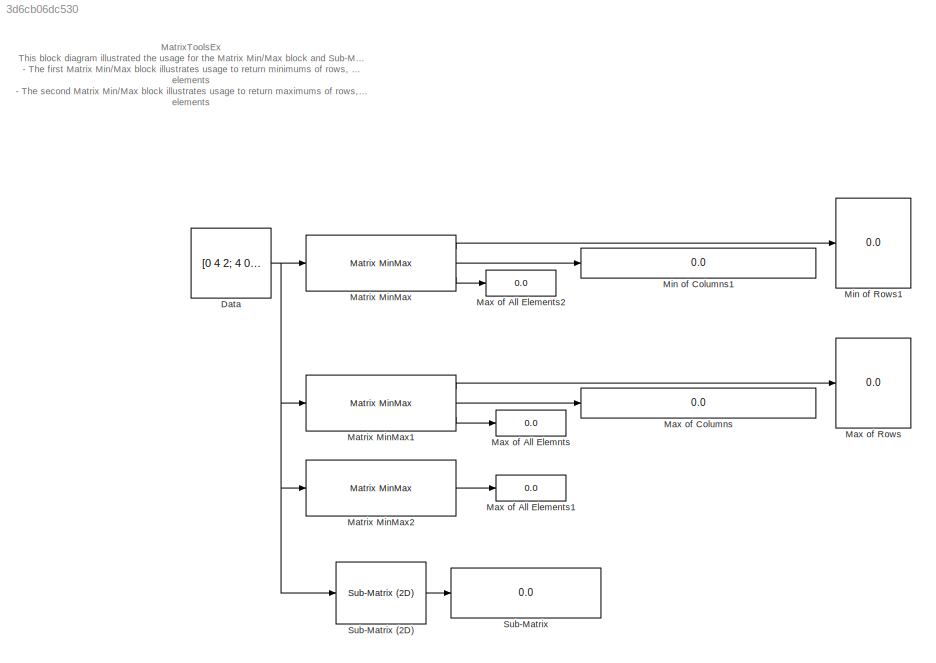
MODEL slx_3d6cb06dc530
KIND model
CONFIG AbsTol = auto
CONFIG FixedStep = auto
CONFIG MaxStep = auto
CONFIG MinStep = auto
CONFIG RelTol = 1e-3
CONFIG SampleTimeConstraint = Unconstrained
CONFIG Solver = ode45
CONFIG SolverMode = Auto
CONFIG SolverName = ode45
CONFIG StartTime = 0.0
CONFIG StopTime = 10.0
BLOCK [Constant] Data
  Value = [0 4 2; 4 0 -4; 1 -5 7; 8 -2 1]
BLOCK [Reference] Matrix MinMax  REF=lib_GenTools_MinMax/Matrix MinMax
  BN_M = gcb
  Ports = [1, 3]
  SourceBlock = lib_GenTools_MinMax/Matrix MinMax
  SourceType = TSAT: Matrix MinMax Block
  all_M = on
  cols_M = on
  minmax_M = on
  rows_M = on
BLOCK [Reference] Matrix MinMax1  REF=lib_GenTools_MinMax/Matrix MinMax
  BN_M = gcb
  Ports = [1, 3]
  SourceBlock = lib_GenTools_MinMax/Matrix MinMax
  SourceType = TSAT: Matrix MinMax Block
  all_M = on
  cols_M = on
  minmax_M = off
  rows_M = on
BLOCK [Reference] Matrix MinMax2  REF=lib_GenTools_MinMax/Matrix MinMax
  BN_M = gcb
  Ports = [1, 1]
  SourceBlock = lib_GenTools_MinMax/Matrix MinMax
  SourceType = TSAT: Matrix MinMax Block
  all_M = on
  cols_M = off
  minmax_M = off
  rows_M = off
BLOCK [Display] Max of All Elements1
  Decimation = 1
  Ports = [1]
BLOCK [Display] Max of All Elements2
  Decimation = 1
  Ports = [1]
BLOCK [Display] Max of All Elemnts
  Decimation = 1
  Ports = [1]
BLOCK [Display] Max of Columns
  Decimation = 1
  Ports = [1]
BLOCK [Display] Max of Rows
  Decimation = 1
  Ports = [1]
BLOCK [Display] Min of Columns1
  Decimation = 1
  Ports = [1]
BLOCK [Display] Min of Rows1
  Decimation = 1
  Ports = [1]
BLOCK [Display] Sub-Matrix
  Decimation = 1
  Ports = [1]
BLOCK [Reference] Sub-Matrix (2D)  REF=lib_GenTools_SubMatrix/Sub-Matrix (2D)
  BN_M = double(gcb)
  C1_M = 1
  C2_M = 2
  Ports = [1, 1]
  R1_M = 2
  R2_M = 3
  SourceBlock = lib_GenTools_SubMatrix/Sub-Matrix (2D)
  SourceType = TSAT: Sub-Matrix (2D)
ANNOTATION (root): MatrixToolsEx This block diagram illustrated the usage for the Matrix Min/Max block and Sub-Matrix (2D) block - The first Matrix Min/Max block illustrates usage to return minimums of rows, columns, and all elements - The second Matrix Min/Max block illustrates usage to return maximums of rows, columns, and all elements - The third Matrix Min/Max block illustrate suppression of unneeded outputs - T...<+137ch>
NET Data:1 -> Matrix MinMax1:1, Matrix MinMax2:1, Matrix MinMax:1, Sub-Matrix (2D):1
LINE Matrix MinMax1:1 -> Max of Rows:1
LINE Matrix MinMax1:2 -> Max of Columns:1
LINE Matrix MinMax1:3 -> Max of All Elemnts:1
LINE Matrix MinMax2:1 -> Max of All Elements1:1
LINE Matrix MinMax:1 -> Min of Rows1:1
LINE Matrix MinMax:2 -> Min of Columns1:1
LINE Matrix MinMax:3 -> Max of All Elements2:1
LINE Sub-Matrix (2D):1 -> Sub-Matrix:1
note: NET lines group one-source signal fan-out (src -> all destinations, sorted); 1:1 wires keep LINE
